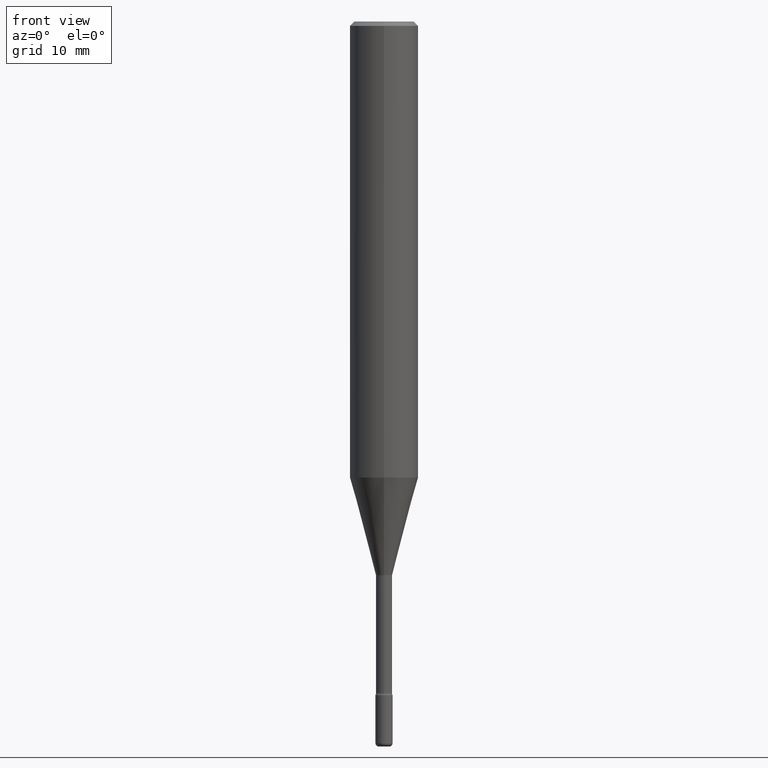
[diagram: clean part render]
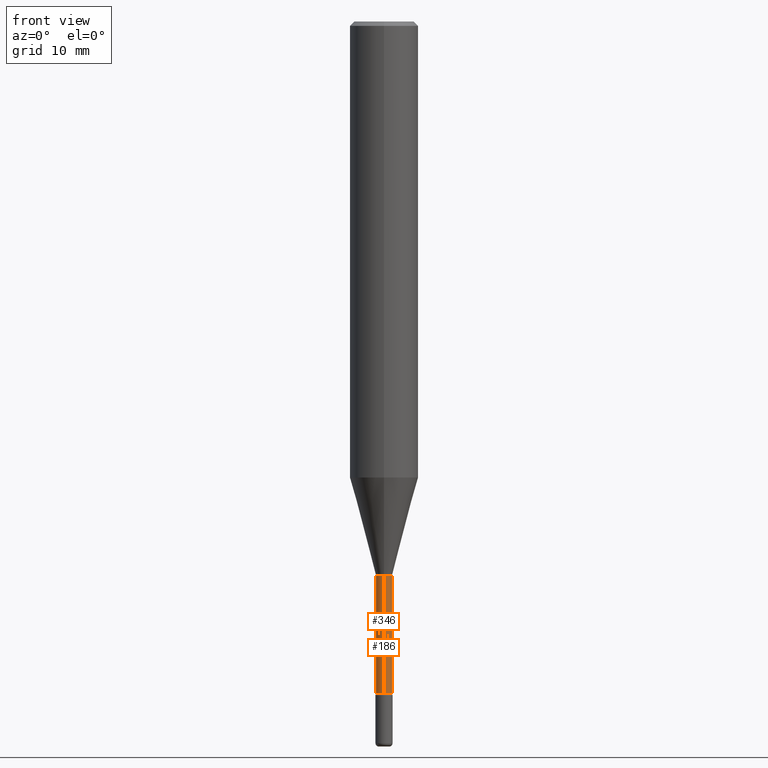
[diagram: same view with one multi-face feature highlighted, each face labeled with its STEP entity id]
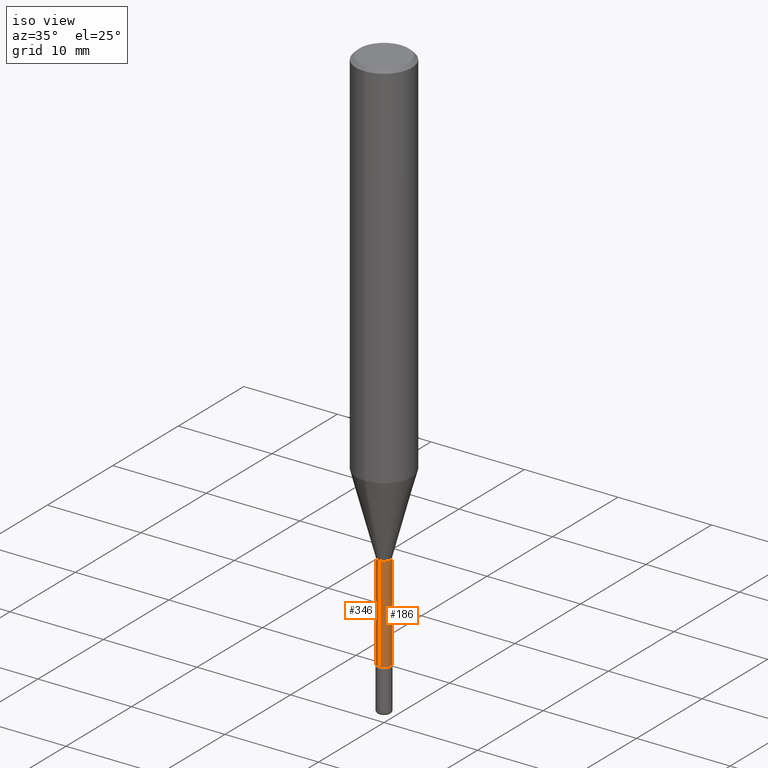
[diagram: same view with one multi-face feature highlighted, each face labeled with its STEP entity id]
A machine part, front view. The highlighted faces form ONE feature: a constant-radius fillet chain: 2 tangent blend faces with common blend radius 0.7061 mm. The faces share edges in the B-rep.
A second angle (iso view) of the same feature is appended — it is thin or edge-on in the first view.
Their STEP definitions:
[1] entity #186 (Cylinder):
#9 = EDGE_CURVE ( 'NONE', #485, #416, #59, .T. ) ;
#13 = VERTEX_POINT ( 'NONE', #452 ) ;
#15 = CARTESIAN_POINT ( 'NONE',  ( 1.975308805413079384E-16, 0.02780000000000001567, 3.810208230623066369E-16 ) ) ;
#27 = CARTESIAN_POINT ( 'NONE',  ( -1.941263624396314333E-16, -0.02780000000000667007, -1.911374787463811176 ) ) ;
#59 = CIRCLE ( 'NONE', #543, 0.02780000000000002955 ) ;
#79 = DIRECTION ( 'NONE',  ( -2.445735198447141206E-29, 3.491099849961848612E-15, 1.000000000000000000 ) ) ;
#84 = ORIENTED_EDGE ( 'NONE', *, *, #377, .F. ) ;
#92 = DIRECTION ( 'NONE',  ( -2.445735198447141486E-29, 3.491099849961848612E-15, 1.000000000000000000 ) ) ;
#98 = ORIENTED_EDGE ( 'NONE', *, *, #223, .T. ) ;
#114 = CARTESIAN_POINT ( 'NONE',  ( -1.169113584055446105E-44, 1.669184350826100908E-30, 4.780733988912460139E-16 ) ) ;
#139 = ORIENTED_EDGE ( 'NONE', *, *, #308, .F. ) ;
#140 = AXIS2_PLACEMENT_3D ( 'NONE', #114, #469, #467 ) ;
#145 = CARTESIAN_POINT ( 'NONE',  ( 5.663757313182499342E-29, -8.084580178110025826E-15, -2.315768819444787407 ) ) ;
#186 = ADVANCED_FACE ( 'NONE', ( #376 ), #288, .T. ) ;
#193 = CIRCLE ( 'NONE', #268, 0.02779999999999999832 ) ;
#223 = EDGE_CURVE ( 'NONE', #416, #13, #242, .T. ) ;
#242 = LINE ( 'NONE', #15, #470 ) ;
#249 = DIRECTION ( 'NONE',  ( -6.982962677686265922E-15, -1.000000000000000000, 0.000000000000000000 ) ) ;
#252 = LINE ( 'NONE', #442, #563 ) ;
#262 = VERTEX_POINT ( 'NONE', #27 ) ;
#263 = CARTESIAN_POINT ( 'NONE',  ( 2.037481294792655692E-16, 0.02779999999999194574, -2.315768819444787407 ) ) ;
#268 = AXIS2_PLACEMENT_3D ( 'NONE', #472, #475, #249 ) ;
#271 = DIRECTION ( 'NONE',  ( -6.982962677686265922E-15, -1.000000000000000000, 0.000000000000000000 ) ) ;
#288 = CYLINDRICAL_SURFACE ( 'NONE', #140, 0.02780000000000001567 ) ;
#291 = DIRECTION ( 'NONE',  ( -2.445735198447141206E-29, 3.491099849961848612E-15, 1.000000000000000000 ) ) ;
#302 = ORIENTED_EDGE ( 'NONE', *, *, #9, .T. ) ;
#308 = EDGE_CURVE ( 'NONE', #262, #13, #193, .T. ) ;
#376 = FACE_OUTER_BOUND ( 'NONE', #415, .T. ) ;
#377 = EDGE_CURVE ( 'NONE', #485, #262, #252, .T. ) ;
#415 = EDGE_LOOP ( 'NONE', ( #302, #98, #139, #84 ) ) ;
#416 = VERTEX_POINT ( 'NONE', #263 ) ;
#442 = CARTESIAN_POINT ( 'NONE',  ( -1.941263624396782966E-16, -0.02780000000000001567, 5.751259747201854896E-16 ) ) ;
#452 = CARTESIAN_POINT ( 'NONE',  ( 1.975308805413645638E-16, 0.02779999999999332658, -1.911374787463811176 ) ) ;
#467 = DIRECTION ( 'NONE',  ( -6.982962677686265922E-15, -1.000000000000000000, 3.491099849961847429E-15 ) ) ;
#469 = DIRECTION ( 'NONE',  ( -2.445735198447141486E-29, 3.491099849961848612E-15, 1.000000000000000000 ) ) ;
#470 = VECTOR ( 'NONE', #291, 39.37007874015748143 ) ;
#472 = CARTESIAN_POINT ( 'NONE',  ( 4.674716595124667421E-29, -6.672800233735771352E-15, -1.911374787463811176 ) ) ;
#475 = DIRECTION ( 'NONE',  ( -2.445735198447141486E-29, 3.491099849961848612E-15, 1.000000000000000000 ) ) ;
#483 = CARTESIAN_POINT ( 'NONE',  ( -1.941263624396217698E-16, -0.02780000000000811336, -2.315768819444787407 ) ) ;
#485 = VERTEX_POINT ( 'NONE', #483 ) ;
#543 = AXIS2_PLACEMENT_3D ( 'NONE', #145, #92, #271 ) ;
#563 = VECTOR ( 'NONE', #79, 39.37007874015748143 ) ;
[2] entity #346 (Cylinder):
#13 = VERTEX_POINT ( 'NONE', #452 ) ;
#15 = CARTESIAN_POINT ( 'NONE',  ( 1.975308805413079384E-16, 0.02780000000000001567, 3.810208230623066369E-16 ) ) ;
#27 = CARTESIAN_POINT ( 'NONE',  ( -1.941263624396314333E-16, -0.02780000000000667007, -1.911374787463811176 ) ) ;
#38 = ORIENTED_EDGE ( 'NONE', *, *, #223, .F. ) ;
#39 = DIRECTION ( 'NONE',  ( -2.445735198447141486E-29, 3.491099849961848612E-15, 1.000000000000000000 ) ) ;
#63 = CIRCLE ( 'NONE', #466, 0.02780000000000002955 ) ;
#79 = DIRECTION ( 'NONE',  ( -2.445735198447141206E-29, 3.491099849961848612E-15, 1.000000000000000000 ) ) ;
#102 = EDGE_LOOP ( 'NONE', ( #38, #539, #280, #191 ) ) ;
#111 = AXIS2_PLACEMENT_3D ( 'NONE', #440, #39, #480 ) ;
#160 = EDGE_CURVE ( 'NONE', #416, #485, #63, .T. ) ;
#173 = DIRECTION ( 'NONE',  ( -2.445735198447141486E-29, 3.491099849961848612E-15, 1.000000000000000000 ) ) ;
#191 = ORIENTED_EDGE ( 'NONE', *, *, #448, .F. ) ;
#223 = EDGE_CURVE ( 'NONE', #416, #13, #242, .T. ) ;
#242 = LINE ( 'NONE', #15, #470 ) ;
#247 = DIRECTION ( 'NONE',  ( -2.445735198447141486E-29, 3.491099849961848612E-15, 1.000000000000000000 ) ) ;
#252 = LINE ( 'NONE', #442, #563 ) ;
#262 = VERTEX_POINT ( 'NONE', #27 ) ;
#263 = CARTESIAN_POINT ( 'NONE',  ( 2.037481294792655692E-16, 0.02779999999999194574, -2.315768819444787407 ) ) ;
#280 = ORIENTED_EDGE ( 'NONE', *, *, #377, .T. ) ;
#284 = DIRECTION ( 'NONE',  ( -6.982962677686265922E-15, -1.000000000000000000, 0.000000000000000000 ) ) ;
#291 = DIRECTION ( 'NONE',  ( -2.445735198447141206E-29, 3.491099849961848612E-15, 1.000000000000000000 ) ) ;
#327 = AXIS2_PLACEMENT_3D ( 'NONE', #348, #173, #568 ) ;
#346 = ADVANCED_FACE ( 'NONE', ( #489 ), #354, .T. ) ;
#348 = CARTESIAN_POINT ( 'NONE',  ( 4.674716595124667421E-29, -6.672800233735771352E-15, -1.911374787463811176 ) ) ;
#354 = CYLINDRICAL_SURFACE ( 'NONE', #111, 0.02780000000000001567 ) ;
#377 = EDGE_CURVE ( 'NONE', #485, #262, #252, .T. ) ;
#416 = VERTEX_POINT ( 'NONE', #263 ) ;
#440 = CARTESIAN_POINT ( 'NONE',  ( -1.169113584055446105E-44, 1.669184350826100908E-30, 4.780733988912460139E-16 ) ) ;
#442 = CARTESIAN_POINT ( 'NONE',  ( -1.941263624396782966E-16, -0.02780000000000001567, 5.751259747201854896E-16 ) ) ;
#448 = EDGE_CURVE ( 'NONE', #13, #262, #507, .T. ) ;
#452 = CARTESIAN_POINT ( 'NONE',  ( 1.975308805413645638E-16, 0.02779999999999332658, -1.911374787463811176 ) ) ;
#466 = AXIS2_PLACEMENT_3D ( 'NONE', #550, #247, #284 ) ;
#470 = VECTOR ( 'NONE', #291, 39.37007874015748143 ) ;
#480 = DIRECTION ( 'NONE',  ( -6.982962677686265922E-15, -1.000000000000000000, 3.491099849961847429E-15 ) ) ;
#483 = CARTESIAN_POINT ( 'NONE',  ( -1.941263624396217698E-16, -0.02780000000000811336, -2.315768819444787407 ) ) ;
#485 = VERTEX_POINT ( 'NONE', #483 ) ;
#489 = FACE_OUTER_BOUND ( 'NONE', #102, .T. ) ;
#507 = CIRCLE ( 'NONE', #327, 0.02779999999999999832 ) ;
#539 = ORIENTED_EDGE ( 'NONE', *, *, #160, .T. ) ;
#550 = CARTESIAN_POINT ( 'NONE',  ( 5.663757313182499342E-29, -8.084580178110025826E-15, -2.315768819444787407 ) ) ;
#563 = VECTOR ( 'NONE', #79, 39.37007874015748143 ) ;
#568 = DIRECTION ( 'NONE',  ( -6.982962677686265922E-15, -1.000000000000000000, 0.000000000000000000 ) ) ;